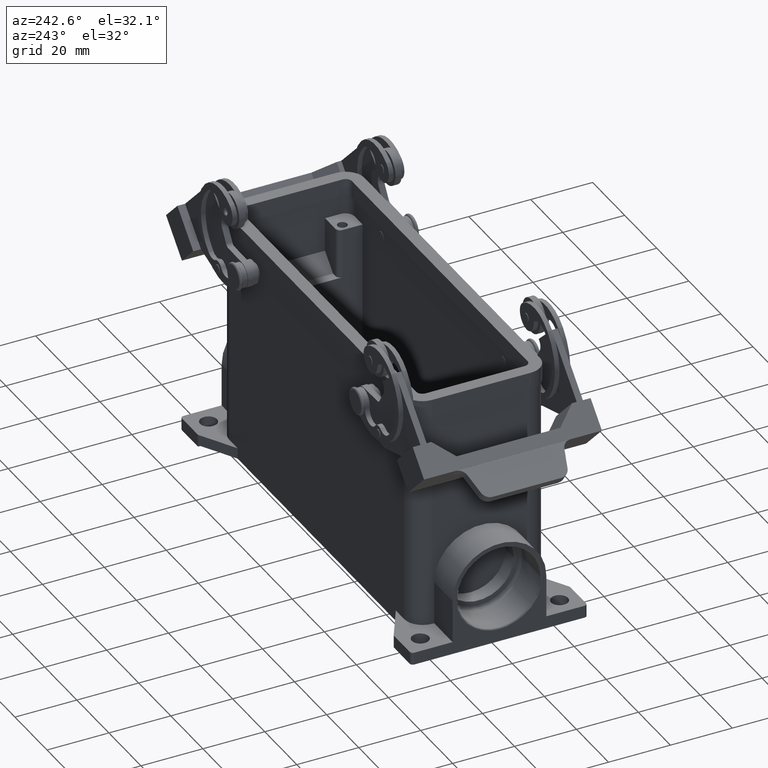
[diagram: clean part render]
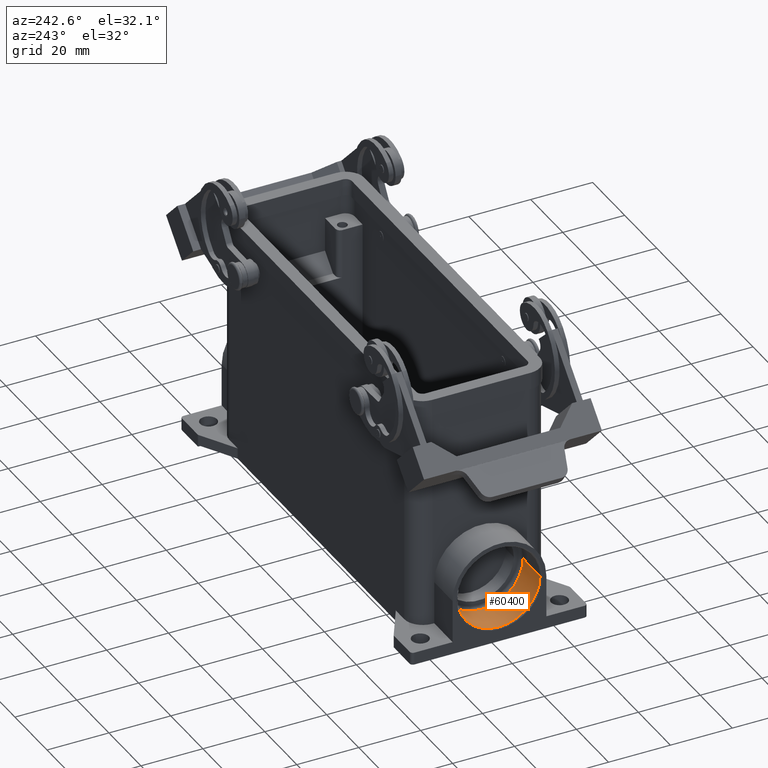
[diagram: same view with one face highlighted and labeled with its STEP entity id]
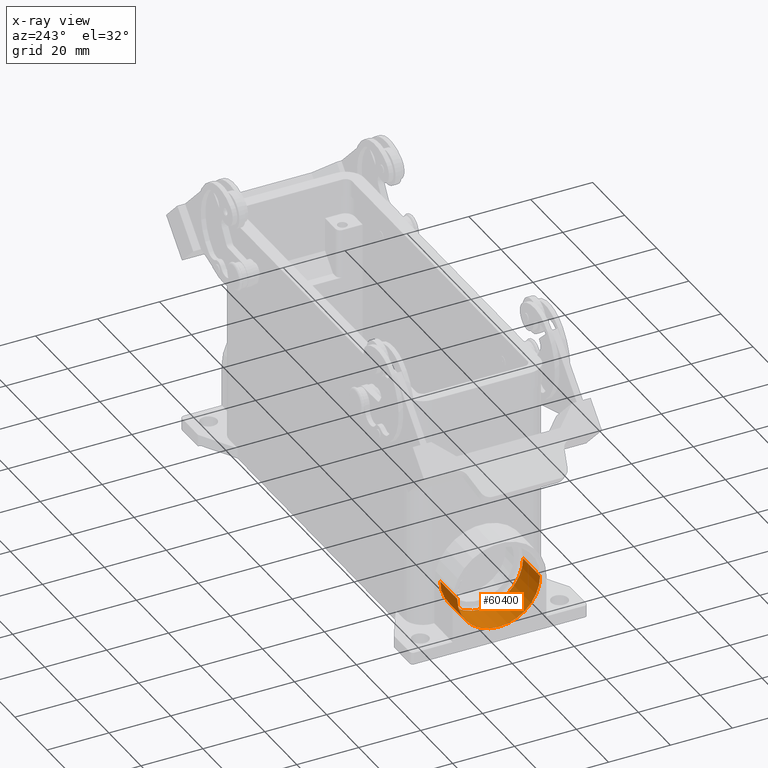
[diagram: x-ray of the same camera — body ghosted, the highlighted face saturated]
A machine part, auxiliary view. The second image highlights one B-rep face of the part: STEP entity #60400.
The next image is the same camera in x-ray: the body ghosted, the highlighted face saturated — about 0% of this face is hidden behind the body in this view.
In plain terms, the highlighted cylindrical surface (partial cylindrical patch) has radius 13.39 mm, axis along (-1, 0, 0).
Its self-contained STEP definition (entity closure, byte-faithful):
#5730=CARTESIAN_POINT('',(-60.8660254037844,9.22630646996482E-16,-46.5))
;
#5740=VERTEX_POINT('',#5730);
#5770=CARTESIAN_POINT('',(-60.8660254037844,0.,-33.11));
#5780=DIRECTION('',(1.,0.,0.));
#5790=DIRECTION('',(0.,0.,1.));
#5800=AXIS2_PLACEMENT_3D('',#5770,#5780,#5790);
#5810=CIRCLE('',#5800,13.39);
#5820=CARTESIAN_POINT('',(-60.8660254037844,13.39,-33.11));
#5830=VERTEX_POINT('',#5820);
#5840=EDGE_CURVE('',#5740,#5830,#5810,.T.);
#60010=CARTESIAN_POINT('',(-60.8660254037844,8.47492082908933E-48,-33.11
));
#60020=DIRECTION('',(-1.,0.,0.));
#60030=DIRECTION('',(0.,1.,0.));
#60040=AXIS2_PLACEMENT_3D('',#60010,#60020,#60030);
#60050=CYLINDRICAL_SURFACE('',#60040,13.39);
#60060=CARTESIAN_POINT('',(-71.5,0.,-33.11));
#60070=DIRECTION('',(1.,0.,0.));
#60080=DIRECTION('',(0.,0.,-1.));
#60090=AXIS2_PLACEMENT_3D('',#60060,#60070,#60080);
#60100=CIRCLE('',#60090,13.39);
#60110=CARTESIAN_POINT('',(-71.5,-1.639748E-15,-46.5));
#60120=VERTEX_POINT('',#60110);
#60130=CARTESIAN_POINT('',(-71.5,13.39,-33.11));
#60140=VERTEX_POINT('',#60130);
#60150=EDGE_CURVE('',#60120,#60140,#60100,.T.);
#60160=ORIENTED_EDGE('',*,*,#60150,.F.);
#60170=CARTESIAN_POINT('',(-60.8660254037844,13.39,-33.11));
#60180=DIRECTION('',(-1.,0.,0.));
#60190=VECTOR('',#60180,1.);
#60200=LINE('',#60170,#60190);
#60210=EDGE_CURVE('',#5830,#60140,#60200,.T.);
#60220=ORIENTED_EDGE('',*,*,#60210,.T.);
#60230=ORIENTED_EDGE('',*,*,#5840,.T.);
#60240=CARTESIAN_POINT('',(-60.8660254037844,-13.39,-33.11));
#60250=VERTEX_POINT('',#60240);
#60260=EDGE_CURVE('',#60250,#5740,#5810,.T.);
#60270=ORIENTED_EDGE('',*,*,#60260,.T.);
#60280=CARTESIAN_POINT('',(-60.8660254037844,-13.39,-33.11));
#60290=DIRECTION('',(-1.,0.,0.));
#60300=VECTOR('',#60290,1.);
#60310=LINE('',#60280,#60300);
#60320=CARTESIAN_POINT('',(-71.5,-13.39,-33.11));
#60330=VERTEX_POINT('',#60320);
#60340=EDGE_CURVE('',#60250,#60330,#60310,.T.);
#60350=ORIENTED_EDGE('',*,*,#60340,.F.);
#60360=EDGE_CURVE('',#60330,#60120,#60100,.T.);
#60370=ORIENTED_EDGE('',*,*,#60360,.F.);
#60380=EDGE_LOOP('',(#60370,#60350,#60270,#60230,#60220,#60160));
#60390=FACE_OUTER_BOUND('',#60380,.T.);
#60400=ADVANCED_FACE('',(#60390),#60050,.F.);